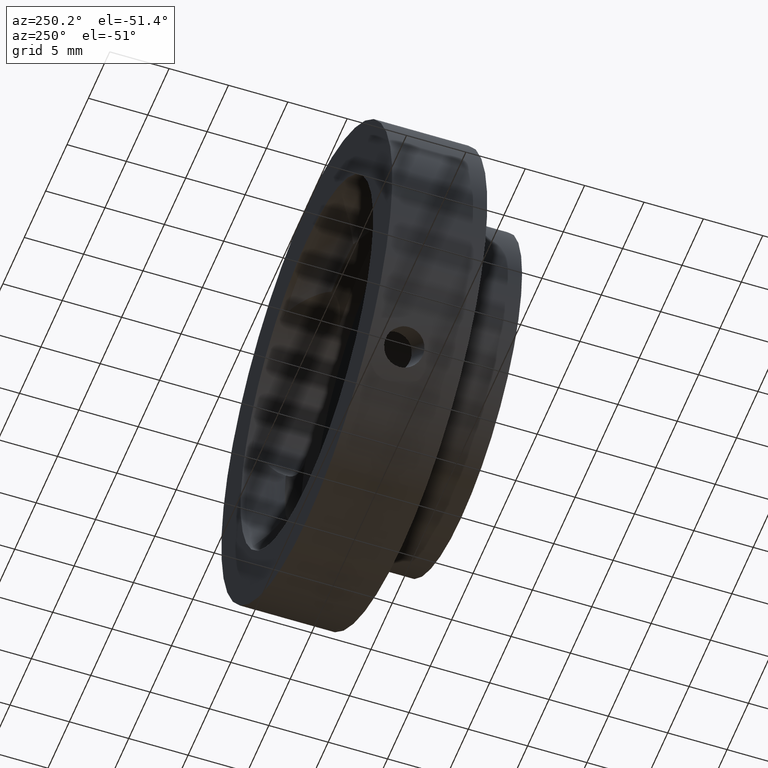
[diagram: clean part render]
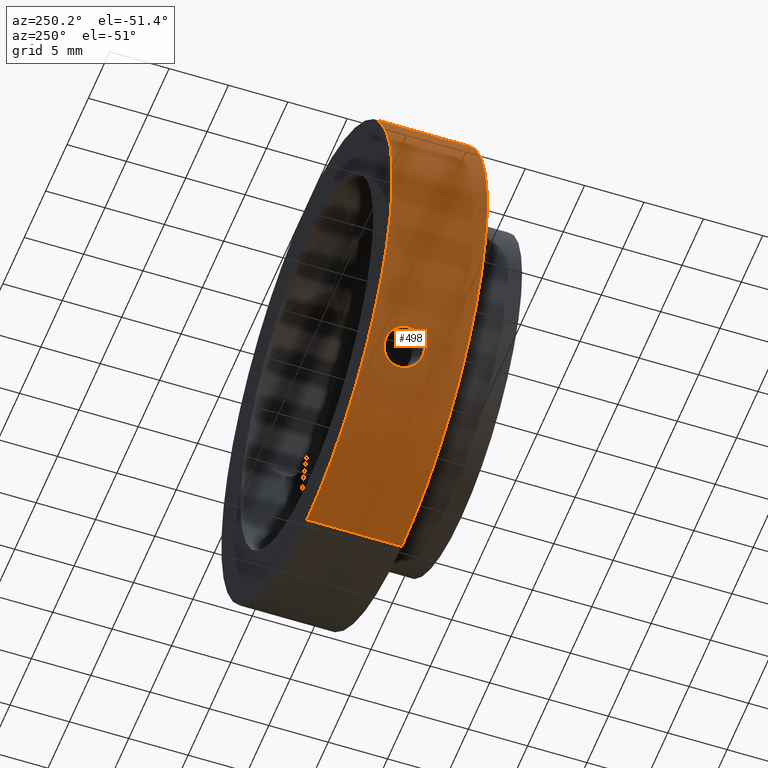
[diagram: same view with one face highlighted and labeled with its STEP entity id]
A machine part, auxiliary view. The second image highlights one B-rep face of the part: STEP entity #498.
In plain terms, the highlighted cylindrical surface (partial cylindrical patch) has radius 20 mm, axis along (-0, -1, -0).
Its self-contained STEP definition (entity closure, byte-faithful):
#2 = CARTESIAN_POINT ( 'NONE',  ( -14.38680015622791500, -0.6533644250876401400, -13.89359014362251800 ) ) ;
#7 = CARTESIAN_POINT ( 'NONE',  ( 2.449293598294706500E-015, 3.996721311475401000, 20.00000000000000000 ) ) ;
#12 = CARTESIAN_POINT ( 'NONE',  ( -13.94689476890352600, -0.4866059496450920200, -14.33506658081498000 ) ) ;
#16 = CARTESIAN_POINT ( 'NONE',  ( -15.02050550066882900, -0.4348628486441766800, -13.20577400210902000 ) ) ;
#18 = CARTESIAN_POINT ( 'NONE',  ( -15.41286451583417400, 1.824593388476450500, -12.74547737417161700 ) ) ;
#23 = ORIENTED_EDGE ( 'NONE', *, *, #525, .T. ) ;
#24 = CARTESIAN_POINT ( 'NONE',  ( -15.44579302667959900, 1.728124317770314700, -12.70547920969844600 ) ) ;
#34 = CIRCLE ( 'NONE', #561, 20.00000000000000000 ) ;
#38 = VERTEX_POINT ( 'NONE', #702 ) ;
#83 = EDGE_CURVE ( 'NONE', #317, #309, #34, .T. ) ;
#104 = CARTESIAN_POINT ( 'NONE',  ( -15.41997146748213000, 0.1670859540026332100, -12.73700418320822800 ) ) ;
#115 = CARTESIAN_POINT ( 'NONE',  ( -14.53728545607224600, -0.6531919174318584500, -13.73605465127722500 ) ) ;
#116 = CARTESIAN_POINT ( 'NONE',  ( -15.51815998679829400, 1.425357915778814100, -12.61693936433252400 ) ) ;
#156 = CARTESIAN_POINT ( 'NONE',  ( -15.55164400681507400, 0.9967213114754011100, -12.57562597588258200 ) ) ;
#177 = DIRECTION ( 'NONE',  ( -0.0000000000000000000, -1.000000000000000000, -0.0000000000000000000 ) ) ;
#191 = CARTESIAN_POINT ( 'NONE',  ( -13.42809885476642700, 0.1651007982953291200, -14.82204442260911000 ) ) ;
#193 = CARTESIAN_POINT ( 'NONE',  ( -15.55164400681507400, 0.9967213114754011100, -12.57562597588258200 ) ) ;
#198 = CARTESIAN_POINT ( 'NONE',  ( -13.33530450782162400, 1.528812500988866000, -14.90541444800746400 ) ) ;
#202 = CARTESIAN_POINT ( 'NONE',  ( -13.87871280668011700, -0.4359862501884284000, -14.40102032471651100 ) ) ;
#203 = CARTESIAN_POINT ( 'NONE',  ( -15.33626398116274600, 2.003269988635698600, -12.83754622889712000 ) ) ;
#204 = CARTESIAN_POINT ( 'NONE',  ( 0.0000000000000000000, 0.0000000000000000000, -20.00000000000000000 ) ) ;
#207 = CARTESIAN_POINT ( 'NONE',  ( -14.53510925017739900, 2.646759973048837400, -13.73834749411369300 ) ) ;
#238 = ORIENTED_EDGE ( 'NONE', *, *, #1004, .F. ) ;
#269 = VERTEX_POINT ( 'NONE', #558 ) ;
#275 = FACE_OUTER_BOUND ( 'NONE', #880, .T. ) ;
#302 = EDGE_CURVE ( 'NONE', #605, #38, #628, .T. ) ;
#306 = CARTESIAN_POINT ( 'NONE',  ( -15.19236858295595900, 2.240677068958439700, -13.00760903738310700 ) ) ;
#309 = VERTEX_POINT ( 'NONE', #490 ) ;
#316 = CARTESIAN_POINT ( 'NONE',  ( -13.31152587793171600, 1.423990284764120200, -14.92661118970910800 ) ) ;
#317 = VERTEX_POINT ( 'NONE', #7 ) ;
#329 = CARTESIAN_POINT ( 'NONE',  ( 0.0000000000000000000, 3.996721311475401000, 0.0000000000000000000 ) ) ;
#336 = VECTOR ( 'NONE', #950, 1000.000000000000000 ) ;
#348 = AXIS2_PLACEMENT_3D ( 'NONE', #770, #684, #387 ) ;
#362 = LINE ( 'NONE', #204, #336 ) ;
#387 = DIRECTION ( 'NONE',  ( 0.0000000000000000000, 0.0000000000000000000, -1.000000000000000000 ) ) ;
#390 = CARTESIAN_POINT ( 'NONE',  ( -15.55164400681507400, 0.9967213114754011100, -12.57562597588258200 ) ) ;
#391 = CARTESIAN_POINT ( 'NONE',  ( -15.54483911354625500, 1.213833856278134600, -12.58405440361229400 ) ) ;
#399 = CARTESIAN_POINT ( 'NONE',  ( -13.68696582839565100, -0.2468596249913152000, -14.58330498361430300 ) ) ;
#404 = CARTESIAN_POINT ( 'NONE',  ( -13.57493057877731200, 2.087597657371860600, -14.68765026894218900 ) ) ;
#474 = CARTESIAN_POINT ( 'NONE',  ( -13.27204243372736800, 0.9967213114754011100, -14.96171412764393900 ) ) ;
#479 = CARTESIAN_POINT ( 'NONE',  ( -14.61066141129361500, -0.6424256177619808200, -13.65795360975725000 ) ) ;
#484 = CARTESIAN_POINT ( 'NONE',  ( -15.19371316456797600, -0.2452988156983362500, -13.00603228385158300 ) ) ;
#490 = CARTESIAN_POINT ( 'NONE',  ( 0.0000000000000000000, 3.996721311475401000, -20.00000000000000000 ) ) ;
#491 = CARTESIAN_POINT ( 'NONE',  ( -14.15924236414885600, 2.603292368116096400, -14.12640502655032100 ) ) ;
#498 = ADVANCED_FACE ( 'NONE', ( #275, #998 ), #1060, .T. ) ;
#500 = ORIENTED_EDGE ( 'NONE', *, *, #302, .T. ) ;
#517 = DIRECTION ( 'NONE',  ( 0.0000000000000000000, 0.0000000000000000000, -1.000000000000000000 ) ) ;
#525 = EDGE_CURVE ( 'NONE', #38, #605, #724, .T. ) ;
#532 = AXIS2_PLACEMENT_3D ( 'NONE', #1133, #666, #763 ) ;
#544 = EDGE_CURVE ( 'NONE', #269, #1188, #847, .T. ) ;
#558 = CARTESIAN_POINT ( 'NONE',  ( 2.449293598294706500E-015, -4.003278688524598100, 20.00000000000000000 ) ) ;
#561 = AXIS2_PLACEMENT_3D ( 'NONE', #329, #600, #517 ) ;
#567 = CARTESIAN_POINT ( 'NONE',  ( -15.34156939239362100, -0.01698717909269468300, -12.83196908355826000 ) ) ;
#571 = CARTESIAN_POINT ( 'NONE',  ( -15.13840126218537400, -0.3149919590972009000, -13.07045751745000800 ) ) ;
#572 = CARTESIAN_POINT ( 'NONE',  ( -14.61001305551221000, 2.636018872390995900, -13.65865007058305400 ) ) ;
#575 = CARTESIAN_POINT ( 'NONE',  ( -14.31190770365899400, -0.6427251150072398300, -13.97069871000129700 ) ) ;
#579 = CARTESIAN_POINT ( 'NONE',  ( -13.30505958321088900, 0.5619670024411356200, -14.93258950103381700 ) ) ;
#581 = CARTESIAN_POINT ( 'NONE',  ( -15.29230130109501900, 2.086645683829786400, -12.88997583187515900 ) ) ;
#586 = CARTESIAN_POINT ( 'NONE',  ( -14.82302405431989300, 2.562685525406835500, -13.42713487214227200 ) ) ;
#600 = DIRECTION ( 'NONE',  ( -0.0000000000000000000, -1.000000000000000000, -0.0000000000000000000 ) ) ;
#605 = VERTEX_POINT ( 'NONE', #156 ) ;
#628 = B_SPLINE_CURVE_WITH_KNOTS ( 'NONE', 3,
 ( #390, #769, #754, #104, #567, #484, #571, #16, #683, #678, #1137, #479, #115, #2, #575, #772, #958, #12, #202, #1132, #399, #779, #191, #579, #1052, #863 ),
 .UNSPECIFIED., .F., .F.,
 ( 4, 2, 2, 2, 2, 2, 2, 2, 2, 2, 2, 2, 4 ),
 ( 0.005160843678486146600, 0.005805799639290804700, 0.006450755600095462800, 0.006773233580497793100, 0.007095711560900123400, 0.007418189541302453800, 0.007740667521704784100, 0.008063145502107115300, 0.008385623482509445600, 0.008708101462911776000, 0.009030579443314106300, 0.009675535404118761800, 0.01032049136492341700 ),
 .UNSPECIFIED. ) ;
#661 = CARTESIAN_POINT ( 'NONE',  ( -14.31197120151991300, 2.646643667445873300, -13.97189505619458100 ) ) ;
#666 = DIRECTION ( 'NONE',  ( -0.0000000000000000000, -1.000000000000000000, -0.0000000000000000000 ) ) ;
#678 = CARTESIAN_POINT ( 'NONE',  ( -14.82449074617279700, -0.5684956524602807800, -13.42551463548651100 ) ) ;
#679 = CARTESIAN_POINT ( 'NONE',  ( -15.49841678230095200, 1.528225747570851800, -12.64123417286443500 ) ) ;
#683 = CARTESIAN_POINT ( 'NONE',  ( -14.95779612465811900, -0.4855859218004313100, -13.27683336508326700 ) ) ;
#684 = DIRECTION ( 'NONE',  ( -0.0000000000000000000, -1.000000000000000000, -0.0000000000000000000 ) ) ;
#695 = EDGE_CURVE ( 'NONE', #309, #1188, #362, .T. ) ;
#702 = CARTESIAN_POINT ( 'NONE',  ( -13.27204243372736800, 0.9967213114754011100, -14.96171412764393900 ) ) ;
#724 = B_SPLINE_CURVE_WITH_KNOTS ( 'NONE', 3,
 ( #474, #757, #875, #316, #198, #1044, #959, #964, #404, #854, #941, #491, #661, #207, #572, #1148, #586, #1053, #1144, #1128, #306, #581, #203, #18, #24, #679, #116, #391, #781, #193 ),
 .UNSPECIFIED., .F., .F.,
 ( 4, 2, 2, 2, 2, 2, 2, 2, 2, 2, 2, 2, 2, 2, 4 ),
 ( 2.168404344971008900E-019, 0.0003225527299053828100, 0.0006451054598107654000, 0.0009676581897161479900, 0.001290210919621529900, 0.001935316379432297500, 0.002580421839243065100, 0.002902974569148450600, 0.003225527299053835200, 0.003548080028959221600, 0.003870632758864607200, 0.004193185488769991800, 0.004515738218675376500, 0.004838290948580762000, 0.005160843678486146600 ),
 .UNSPECIFIED. ) ;
#728 = CARTESIAN_POINT ( 'NONE',  ( 0.0000000000000000000, -4.003278688524598100, -20.00000000000000000 ) ) ;
#749 = CARTESIAN_POINT ( 'NONE',  ( 2.449293598294706500E-015, 0.0000000000000000000, 20.00000000000000000 ) ) ;
#754 = CARTESIAN_POINT ( 'NONE',  ( -15.52444395437801500, 0.5642305621142673600, -12.60945817743184700 ) ) ;
#757 = CARTESIAN_POINT ( 'NONE',  ( -13.27204243372737100, 1.105790541802476900, -14.96171412764393700 ) ) ;
#763 = DIRECTION ( 'NONE',  ( 0.0000000000000000000, 0.0000000000000000000, -1.000000000000000000 ) ) ;
#769 = CARTESIAN_POINT ( 'NONE',  ( -15.55164400681507400, 0.7813509348124896300, -12.57562597588258200 ) ) ;
#770 = CARTESIAN_POINT ( 'NONE',  ( 0.0000000000000000000, 0.0000000000000000000, 0.0000000000000000000 ) ) ;
#772 = CARTESIAN_POINT ( 'NONE',  ( -14.16376253869540800, -0.6009504713625539700, -14.12086949557761000 ) ) ;
#779 = CARTESIAN_POINT ( 'NONE',  ( -13.51952042646674600, -0.01874412960391681800, -14.73926181223022300 ) ) ;
#781 = CARTESIAN_POINT ( 'NONE',  ( -15.55164400681507300, 1.104431460935378700, -12.57562597588258200 ) ) ;
#800 = VECTOR ( 'NONE', #177, 1000.000000000000000 ) ;
#847 = CIRCLE ( 'NONE', #532, 20.00000000000000000 ) ;
#854 = CARTESIAN_POINT ( 'NONE',  ( -13.74227712311912200, 2.315805214336339500, -14.53179486632400400 ) ) ;
#863 = CARTESIAN_POINT ( 'NONE',  ( -13.27204243372736800, 0.9967213114754011100, -14.96171412764393900 ) ) ;
#875 = CARTESIAN_POINT ( 'NONE',  ( -13.28008638160235900, 1.213027640882852400, -14.95458954651629400 ) ) ;
#880 = EDGE_LOOP ( 'NONE', ( #238, #1201, #906, #1135 ) ) ;
#906 = ORIENTED_EDGE ( 'NONE', *, *, #695, .T. ) ;
#914 = LINE ( 'NONE', #749, #800 ) ;
#941 = CARTESIAN_POINT ( 'NONE',  ( -13.87585017867923800, 2.438717830272921100, -14.40486879911446900 ) ) ;
#950 = DIRECTION ( 'NONE',  ( -0.0000000000000000000, -1.000000000000000000, -0.0000000000000000000 ) ) ;
#958 = CARTESIAN_POINT ( 'NONE',  ( -14.08959824874779600, -0.5693315818255561000, -14.19483105782348200 ) ) ;
#959 = CARTESIAN_POINT ( 'NONE',  ( -13.43484844978527300, 1.823387105312494400, -14.81581755540198500 ) ) ;
#964 = CARTESIAN_POINT ( 'NONE',  ( -13.52353392191535300, 2.002724686369212300, -14.73491204474801300 ) ) ;
#998 = FACE_BOUND ( 'NONE', #1096, .T. ) ;
#1004 = EDGE_CURVE ( 'NONE', #317, #269, #914, .T. ) ;
#1044 = CARTESIAN_POINT ( 'NONE',  ( -13.39711720851087400, 1.728626039596513800, -14.84988136937866100 ) ) ;
#1052 = CARTESIAN_POINT ( 'NONE',  ( -13.27204243372736600, 0.7786334029946442300, -14.96171412764393900 ) ) ;
#1053 = CARTESIAN_POINT ( 'NONE',  ( -14.95650436400246800, 2.479993548300784200, -13.27828943046582900 ) ) ;
#1060 = CYLINDRICAL_SURFACE ( 'NONE', #348, 20.00000000000000000 ) ;
#1096 = EDGE_LOOP ( 'NONE', ( #23, #500 ) ) ;
#1128 = CARTESIAN_POINT ( 'NONE',  ( -15.13800362327176300, 2.308872094084326100, -13.07091623365738500 ) ) ;
#1132 = CARTESIAN_POINT ( 'NONE',  ( -13.74890324222880400, -0.3164583742241598400, -14.52500310495785000 ) ) ;
#1133 = CARTESIAN_POINT ( 'NONE',  ( 0.0000000000000000000, -4.003278688524598100, 0.0000000000000000000 ) ) ;
#1135 = ORIENTED_EDGE ( 'NONE', *, *, #544, .F. ) ;
#1137 = CARTESIAN_POINT ( 'NONE',  ( -14.75389369461491300, -0.6003439994022183900, -13.50310129302701200 ) ) ;
#1144 = CARTESIAN_POINT ( 'NONE',  ( -15.02045456478479900, 2.428323922416704100, -13.20583013493330800 ) ) ;
#1148 = CARTESIAN_POINT ( 'NONE',  ( -14.75376105842334200, 2.593865230012475400, -13.50324915951071400 ) ) ;
#1188 = VERTEX_POINT ( 'NONE', #728 ) ;
#1201 = ORIENTED_EDGE ( 'NONE', *, *, #83, .T. ) ;